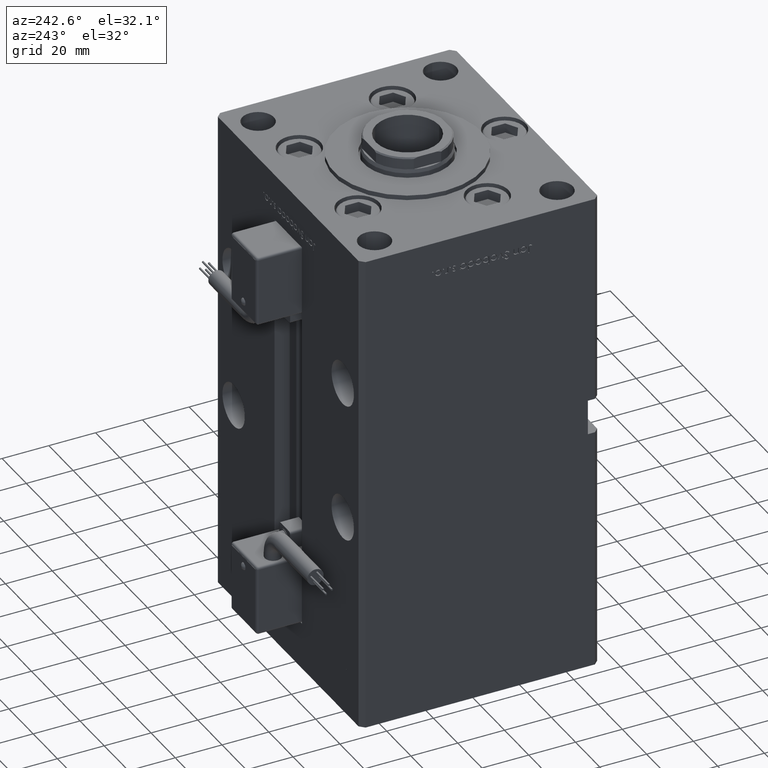
[diagram: clean part render]
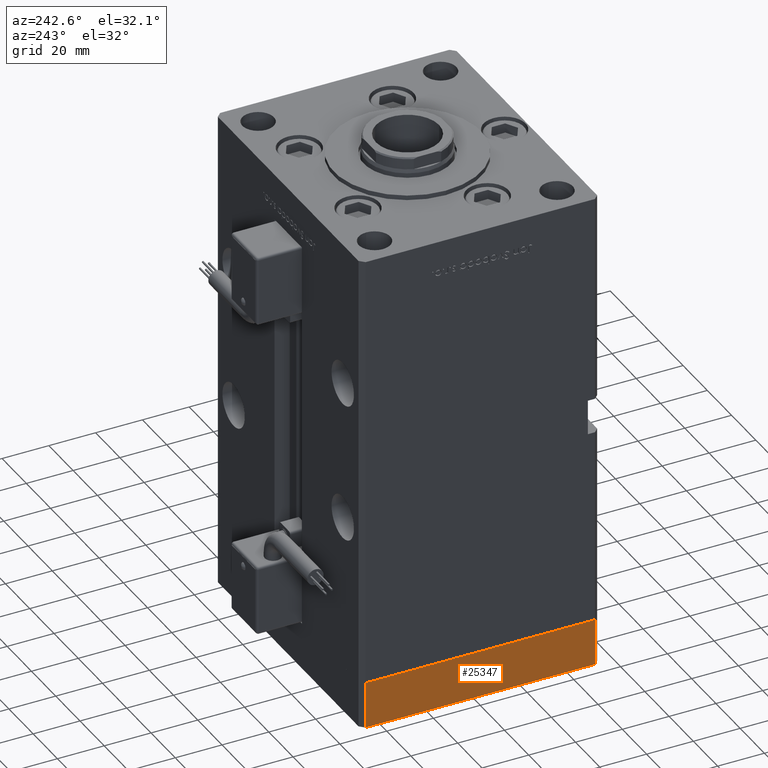
[diagram: same view with one face highlighted and labeled with its STEP entity id]
A machine part, auxiliary view. The second image highlights one B-rep face of the part: STEP entity #25347.
In plain terms, the highlighted planar face has unit normal (-1, -0, 0).
Its self-contained STEP definition (entity closure, byte-faithful):
#786 = VERTEX_POINT ( 'NONE', #23262 ) ;
#1475 = EDGE_CURVE ( 'NONE', #46786, #786, #11258, .T. ) ;
#4427 = CARTESIAN_POINT ( 'NONE',  ( 59.99999999999994316, 49.00000000000000000, -20.00000000000000000 ) ) ;
#5393 = DIRECTION ( 'NONE',  ( -7.080503983578803823E-16, 1.000000000000000000, 0.000000000000000000 ) ) ;
#6192 = LINE ( 'NONE', #10437, #7527 ) ;
#7394 = EDGE_CURVE ( 'NONE', #786, #54471, #36151, .T. ) ;
#7527 = VECTOR ( 'NONE', #27924, 1000.000000000000000 ) ;
#9809 = EDGE_CURVE ( 'NONE', #28157, #54471, #37814, .T. ) ;
#10437 = CARTESIAN_POINT ( 'NONE',  ( 60.00000000000001421, -48.99999999999999289, -20.00000000000000000 ) ) ;
#10981 = VECTOR ( 'NONE', #12143, 1000.000000000000000 ) ;
#11258 = LINE ( 'NONE', #50691, #17117 ) ;
#12143 = DIRECTION ( 'NONE',  ( 0.000000000000000000, 0.000000000000000000, 1.000000000000000000 ) ) ;
#15680 = PLANE ( 'NONE',  #54335 ) ;
#17117 = VECTOR ( 'NONE', #37759, 1000.000000000000000 ) ;
#23262 = CARTESIAN_POINT ( 'NONE',  ( 60.00000000000001421, -48.99999999999999289, 0.000000000000000000 ) ) ;
#23623 = DIRECTION ( 'NONE',  ( -7.080503983578804809E-16, 1.000000000000000000, 0.000000000000000000 ) ) ;
#25347 = ADVANCED_FACE ( 'NONE', ( #49527 ), #15680, .T. ) ;
#25860 = EDGE_CURVE ( 'NONE', #46786, #28157, #6192, .T. ) ;
#27487 = CARTESIAN_POINT ( 'NONE',  ( 60.00000000000001421, -48.99999999999999289, -20.00000000000000000 ) ) ;
#27924 = DIRECTION ( 'NONE',  ( -7.080503983578803823E-16, 1.000000000000000000, 0.000000000000000000 ) ) ;
#28121 = CARTESIAN_POINT ( 'NONE',  ( 60.00000000000001421, -48.99999999999999289, -20.00000000000000000 ) ) ;
#28157 = VERTEX_POINT ( 'NONE', #4427 ) ;
#35272 = EDGE_LOOP ( 'NONE', ( #53020, #36672, #46234, #51621 ) ) ;
#36151 = LINE ( 'NONE', #52483, #45996 ) ;
#36672 = ORIENTED_EDGE ( 'NONE', *, *, #1475, .F. ) ;
#37759 = DIRECTION ( 'NONE',  ( 0.000000000000000000, 0.000000000000000000, 1.000000000000000000 ) ) ;
#37814 = LINE ( 'NONE', #54992, #10981 ) ;
#45996 = VECTOR ( 'NONE', #5393, 1000.000000000000000 ) ;
#46234 = ORIENTED_EDGE ( 'NONE', *, *, #25860, .T. ) ;
#46786 = VERTEX_POINT ( 'NONE', #27487 ) ;
#49527 = FACE_OUTER_BOUND ( 'NONE', #35272, .T. ) ;
#50691 = CARTESIAN_POINT ( 'NONE',  ( 60.00000000000001421, -48.99999999999999289, -20.00000000000000000 ) ) ;
#51621 = ORIENTED_EDGE ( 'NONE', *, *, #9809, .T. ) ;
#52483 = CARTESIAN_POINT ( 'NONE',  ( 60.00000000000001421, -48.99999999999999289, 0.000000000000000000 ) ) ;
#53020 = ORIENTED_EDGE ( 'NONE', *, *, #7394, .F. ) ;
#54315 = DIRECTION ( 'NONE',  ( 1.000000000000000000, 7.080503983578804809E-16, -0.000000000000000000 ) ) ;
#54335 = AXIS2_PLACEMENT_3D ( 'NONE', #28121, #54315, #23623 ) ;
#54471 = VERTEX_POINT ( 'NONE', #55639 ) ;
#54992 = CARTESIAN_POINT ( 'NONE',  ( 59.99999999999994316, 49.00000000000000000, -20.00000000000000000 ) ) ;
#55639 = CARTESIAN_POINT ( 'NONE',  ( 59.99999999999994316, 49.00000000000000000, 0.000000000000000000 ) ) ;